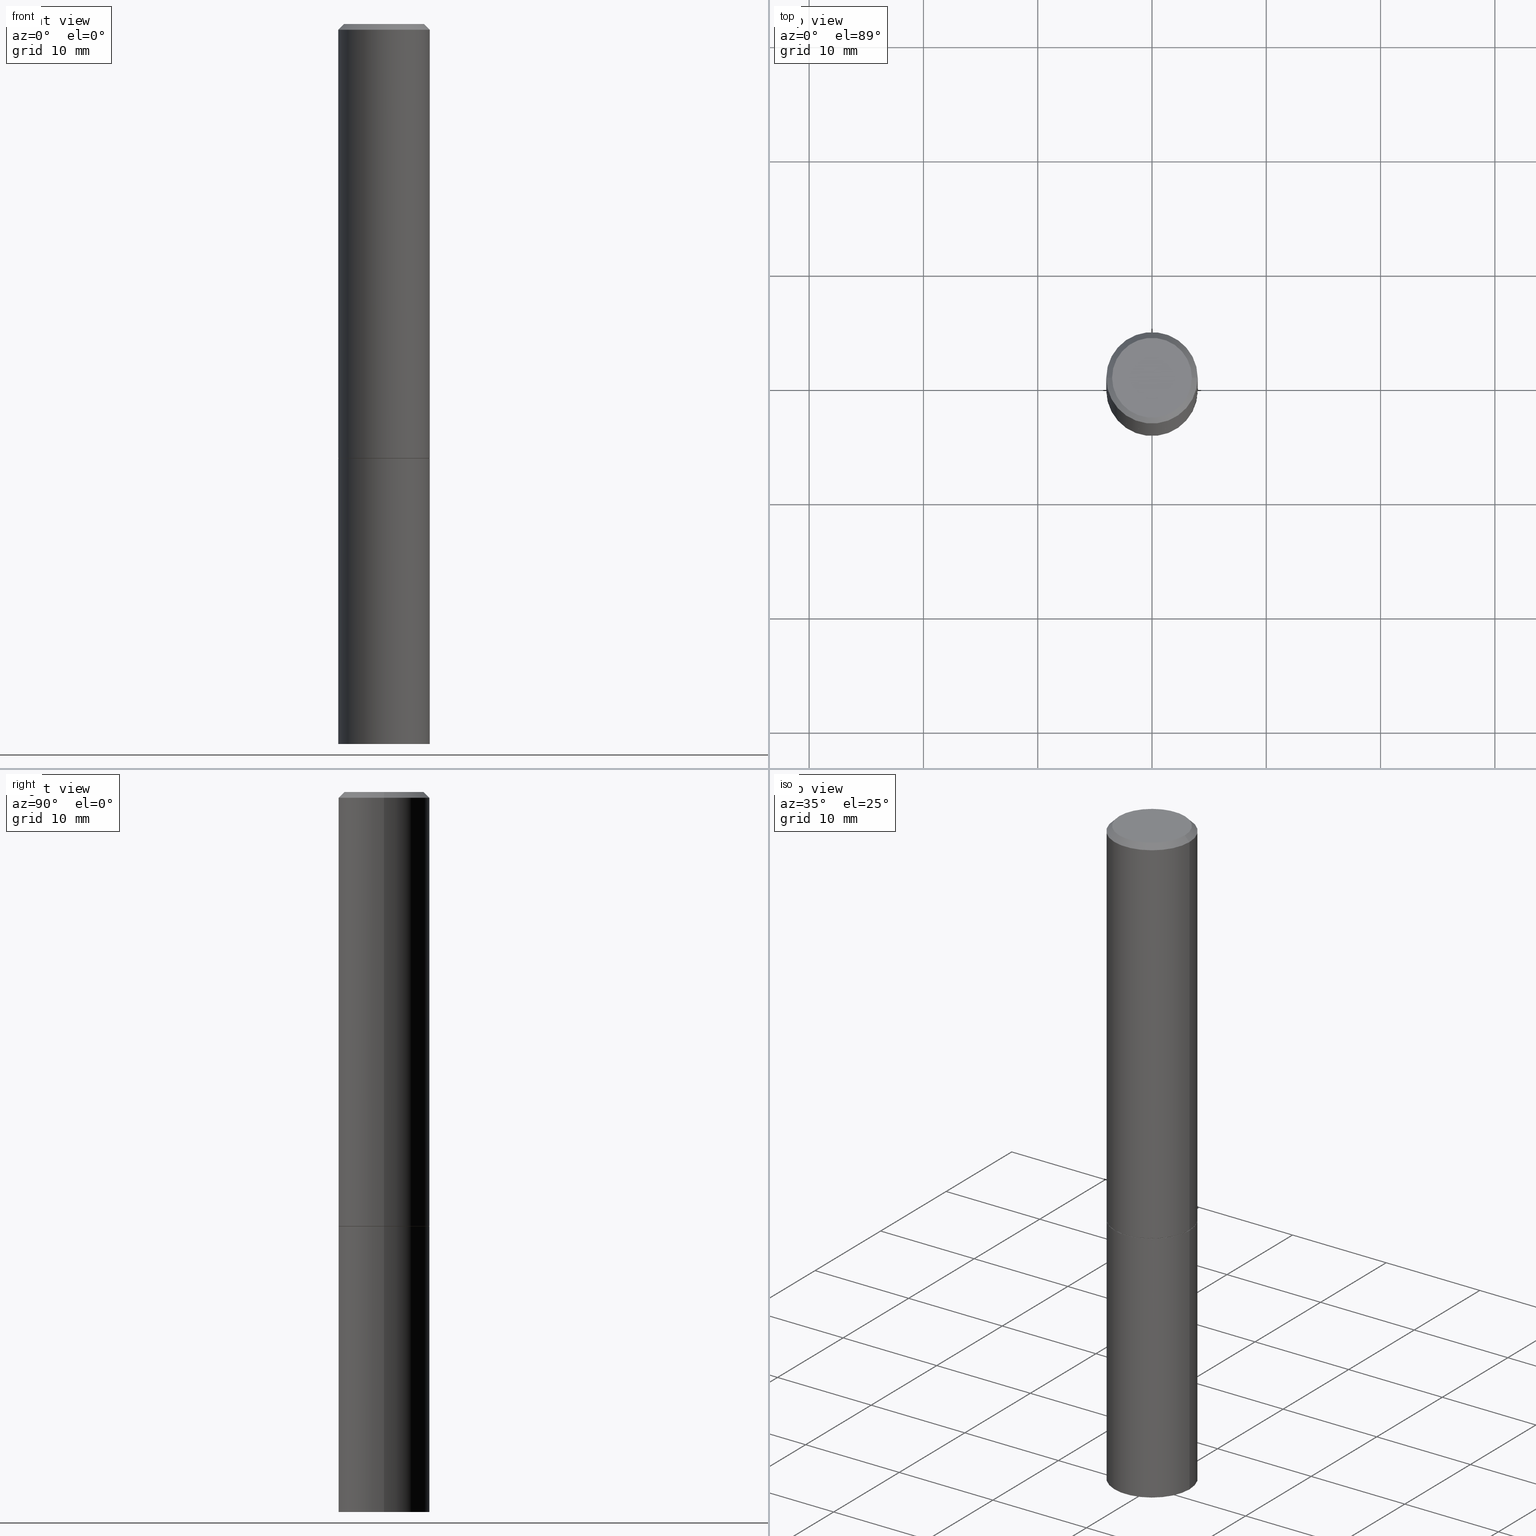
[diagram: canonical four-view strip — front | top / right | iso, engineering-drawing reading convention]
A machine part, canonical four-view strip (front | top / right | iso — engineering-drawing reading convention). The complete STEP part file that produces these views, byte-faithful:
ISO-10303-21;
HEADER;
FILE_DESCRIPTION (( 'STEP AP203' ),
    '1' );
FILE_NAME ('83222.STEP',
    '2024-03-01T01:12:23',
    ( '' ),
    ( '' ),
    'SwSTEP 2.0',
    'SolidWorks 2023',
    '' );
FILE_SCHEMA (( 'CONFIG_CONTROL_DESIGN' ));
ENDSEC;

DATA;
#1 = MANIFOLD_SOLID_BREP ( 'Body-Move/Copy2[1]', #156 ) ;
#2 = PRODUCT_RELATED_PRODUCT_CATEGORY ( 'detail', '', ( #17 ) ) ;
#3 = DIRECTION ( 'NONE',  ( 2.445468806185136597E-29, -3.491481338843145583E-15, -1.000000000000000000 ) ) ;
#4 = COORDINATED_UNIVERSAL_TIME_OFFSET ( 5, 0, .BEHIND. ) ;
#5 = DIRECTION ( 'NONE',  ( 1.000000000000000000, -6.982962677686267499E-15, 0.000000000000000000 ) ) ;
#6 = PERSON_AND_ORGANIZATION ( #346, #191 ) ;
#7 = PLANE ( 'NONE',  #265 ) ;
#8 = AXIS2_PLACEMENT_3D ( 'NONE', #71, #187, #299 ) ;
#9 = COORDINATED_UNIVERSAL_TIME_OFFSET ( 5, 0, .BEHIND. ) ;
#10 = DIRECTION ( 'NONE',  ( -1.000000000000000000, 6.982962677686265922E-15, -4.876176775795935793E-29 ) ) ;
#11 = CARTESIAN_POINT ( 'NONE',  ( 3.655975865246779683E-29, -5.219764601570503930E-15, -1.495000000000000329 ) ) ;
#12 = DIRECTION ( 'NONE',  ( -2.445468806185136597E-29, 3.491481338843145583E-15, 1.000000000000000000 ) ) ;
#13 = AXIS2_PLACEMENT_3D ( 'NONE', #268, #129, #272 ) ;
#14 = CIRCLE ( 'NONE', #275, 0.1374999999999998446 ) ;
#15 = DIRECTION ( 'NONE',  ( 2.438088387897960049E-29, -3.491481338843145188E-15, -1.000000000000000000 ) ) ;
#16 = CARTESIAN_POINT ( 'NONE',  ( 3.658421334052965846E-29, -5.223256082909347726E-15, -1.496000000000000663 ) ) ;
#17 = PRODUCT ( '83222', '83222', '', ( #255 ) ) ;
#18 = CYLINDRICAL_SURFACE ( 'NONE', #297, 0.1575000000000000011 ) ;
#19 = ADVANCED_FACE ( 'NONE', ( #342 ), #229, .T. ) ;
#20 = ORIENTED_EDGE ( 'NONE', *, *, #232, .T. ) ;
#21 =( NAMED_UNIT ( * ) SI_UNIT ( $, .STERADIAN. ) SOLID_ANGLE_UNIT ( ) );
#22 = ORIENTED_EDGE ( 'NONE', *, *, #103, .T. ) ;
#23 =( LENGTH_UNIT ( ) NAMED_UNIT ( * ) SI_UNIT ( $, .METRE. ) );
#24 = EDGE_CURVE ( 'NONE', #338, #307, #137, .T. ) ;
#25 = VERTEX_POINT ( 'NONE', #62 ) ;
#26 = ORIENTED_EDGE ( 'NONE', *, *, #167, .T. ) ;
#27 = PERSON_AND_ORGANIZATION_ROLE ( 'creator' ) ;
#28 = ORIENTED_EDGE ( 'NONE', *, *, #103, .F. ) ;
#29 = APPROVAL ( #234, 'UNSPECIFIED' ) ;
#30 = DATE_AND_TIME ( #227, #77 ) ;
#31 = CONICAL_SURFACE ( 'NONE', #240, 0.1565000000000000002, 0.7853981633972775267 ) ;
#32 = DIRECTION ( 'NONE',  ( -2.445468806185136877E-29, 3.491481338843145188E-15, 1.000000000000000000 ) ) ;
#33 = DIRECTION ( 'NONE',  ( -1.000000000000000000, 6.982962677686265922E-15, 0.000000000000000000 ) ) ;
#34 = EDGE_CURVE ( 'NONE', #278, #250, #67, .T. ) ;
#35 = LINE ( 'NONE', #86, #214 ) ;
#36 = PERSON_AND_ORGANIZATION ( #346, #191 ) ;
#37 = CARTESIAN_POINT ( 'NONE',  ( -0.1575000000000000011, -1.525692305351524236E-15, -1.495000000000000329 ) ) ;
#38 = AXIS2_PLACEMENT_3D ( 'NONE', #199, #12, #42 ) ;
#39 = DIRECTION ( 'NONE',  ( -2.445468806185136597E-29, 3.491481338843145583E-15, 1.000000000000000000 ) ) ;
#40 = DIRECTION ( 'NONE',  ( -2.445468806185136597E-29, 3.491481338843145583E-15, 1.000000000000000000 ) ) ;
#41 = ADVANCED_FACE ( 'NONE', ( #344 ), #254, .T. ) ;
#42 = DIRECTION ( 'NONE',  ( 1.000000000000000000, -6.982962677686267499E-15, 0.000000000000000000 ) ) ;
#43 = AXIS2_PLACEMENT_3D ( 'NONE', #262, #65, #181 ) ;
#44 = DIRECTION ( 'NONE',  ( -2.445468806185136597E-29, 3.491481338843145583E-15, 1.000000000000000000 ) ) ;
#45 = PLANE ( 'NONE',  #339 ) ;
#46 = ADVANCED_FACE ( 'NONE', ( #288 ), #113, .T. ) ;
#47 = DIRECTION ( 'NONE',  ( 1.000000000000000000, -6.982962677686268288E-15, 0.000000000000000000 ) ) ;
#48 = AXIS2_PLACEMENT_3D ( 'NONE', #274, #15, #354 ) ;
#49 = APPROVAL_DATE_TIME ( #101, #359 ) ;
#50 = ORIENTED_EDGE ( 'NONE', *, *, #133, .F. ) ;
#51 =( CONVERSION_BASED_UNIT ( 'INCH', #79 ) LENGTH_UNIT ( ) NAMED_UNIT ( #251 ) );
#52 = ORIENTED_EDGE ( 'NONE', *, *, #318, .F. ) ;
#53 = ADVANCED_FACE ( 'NONE', ( #283 ), #31, .T. ) ;
#54 = DIRECTION ( 'NONE',  ( 0.000000000000000000, 0.000000000000000000, 1.000000000000000000 ) ) ;
#55 = ORIENTED_EDGE ( 'NONE', *, *, #152, .T. ) ;
#56 = AXIS2_PLACEMENT_3D ( 'NONE', #116, #320, #267 ) ;
#57 = EDGE_LOOP ( 'NONE', ( #166, #218, #136, #333 ) ) ;
#58 = ORIENTED_EDGE ( 'NONE', *, *, #97, .F. ) ;
#59 = PRODUCT_DEFINITION ( 'UNKNOWN', '', #177, #322 ) ;
#60 = DIRECTION ( 'NONE',  ( -2.445468806185136877E-29, 3.491481338843145188E-15, 1.000000000000000000 ) ) ;
#61 = AXIS2_PLACEMENT_3D ( 'NONE', #314, #145, #324 ) ;
#62 = CARTESIAN_POINT ( 'NONE',  ( -0.1574999999999998346, 1.029986994958722604E-15, -0.02000000000000003511 ) ) ;
#63 = CYLINDRICAL_SURFACE ( 'NONE', #56, 0.1574999999999998901 ) ;
#64 = SECURITY_CLASSIFICATION_LEVEL ( 'unclassified' ) ;
#65 = DIRECTION ( 'NONE',  ( -2.445468806185136597E-29, 3.491481338843145583E-15, 1.000000000000000000 ) ) ;
#66 = DIRECTION ( 'NONE',  ( 2.438088387897960049E-29, -3.491481338843145188E-15, -1.000000000000000000 ) ) ;
#67 = CIRCLE ( 'NONE', #43, 0.1565000000000000002 ) ;
#68 = FACE_OUTER_BOUND ( 'NONE', #225, .T. ) ;
#69 = EDGE_CURVE ( 'NONE', #141, #220, #76, .T. ) ;
#70 = DIRECTION ( 'NONE',  ( -2.438088387897960049E-29, 3.491481338843145188E-15, 1.000000000000000000 ) ) ;
#71 = CARTESIAN_POINT ( 'NONE',  ( 3.658421334052965286E-29, -5.223256082909346937E-15, -1.496000000000000441 ) ) ;
#72 = VECTOR ( 'NONE', #351, 39.37007874015748143 ) ;
#73 = CARTESIAN_POINT ( 'NONE',  ( 1.099816621735623373E-15, 0.1574999999999947553, -1.496000000000000885 ) ) ;
#74 = DIRECTION ( 'NONE',  ( -2.445468806185136877E-29, 3.491481338843145188E-15, 1.000000000000000000 ) ) ;
#75 = ORIENTED_EDGE ( 'NONE', *, *, #167, .F. ) ;
#76 = CIRCLE ( 'NONE', #252, 0.1575000000000000011 ) ;
#77 = LOCAL_TIME ( 20, 12, 23.00000000000000000, #9 ) ;
#78 = PRODUCT_DEFINITION_SHAPE ( 'NONE', 'NONE',  #59 ) ;
#79 = LENGTH_MEASURE_WITH_UNIT ( LENGTH_MEASURE( 0.02539999999999999897 ), #23 );
#80 = VERTEX_POINT ( 'NONE', #290 ) ;
#81 = VERTEX_POINT ( 'NONE', #117 ) ;
#82 = ORIENTED_EDGE ( 'NONE', *, *, #293, .F. ) ;
#83 = APPROVAL_STATUS ( 'not_yet_approved' ) ;
#84 = ORIENTED_EDGE ( 'NONE', *, *, #211, .T. ) ;
#85 = PERSON_AND_ORGANIZATION ( #346, #191 ) ;
#86 = CARTESIAN_POINT ( 'NONE',  ( 0.1575000000000000011, -1.099816621735586889E-15, 7.679978421878598033E-30 ) ) ;
#87 = PERSON_AND_ORGANIZATION ( #346, #191 ) ;
#88 = DIRECTION ( 'NONE',  ( -2.445468806185136597E-29, 3.491481338843145583E-15, 1.000000000000000000 ) ) ;
#89 = CIRCLE ( 'NONE', #233, 0.1575000000000000011 ) ;
#90 = ORIENTED_EDGE ( 'NONE', *, *, #24, .T. ) ;
#91 = ORIENTED_EDGE ( 'NONE', *, *, #232, .F. ) ;
#92 = FACE_OUTER_BOUND ( 'NONE', #303, .T. ) ;
#93 = CC_DESIGN_DATE_AND_TIME_ASSIGNMENT ( #30, #263, ( #260 ) ) ;
#94 = CARTESIAN_POINT ( 'NONE',  ( 0.1574999999999998346, -1.150358061425878091E-15, -0.02000000000000003511 ) ) ;
#95 = DIRECTION ( 'NONE',  ( 1.000000000000000000, -6.982962677686265922E-15, 0.000000000000000000 ) ) ;
#96 = DIRECTION ( 'NONE',  ( 0.7071067811864267805, -2.468850131080992517E-15, 0.7071067811866682540 ) ) ;
#97 = EDGE_CURVE ( 'NONE', #81, #362, #35, .T. ) ;
#98 = CARTESIAN_POINT ( 'NONE',  ( 0.1575000000000000011, -6.319581223306091410E-15, -1.495000000000000329 ) ) ;
#99 = AXIS2_PLACEMENT_3D ( 'NONE', #185, #44, #47 ) ;
#100 = CARTESIAN_POINT ( 'NONE',  ( 4.890937612370281041E-31, -6.982962677686302702E-17, -0.02000000000000003511 ) ) ;
#101 = DATE_AND_TIME ( #249, #241 ) ;
#102 = ORIENTED_EDGE ( 'NONE', *, *, #287, .T. ) ;
#103 = EDGE_CURVE ( 'NONE', #220, #305, #204, .T. ) ;
#104 = ORIENTED_EDGE ( 'NONE', *, *, #162, .F. ) ;
#105 = CONICAL_SURFACE ( 'NONE', #38, 0.1565000000000000002, 0.7853981633972775267 ) ;
#106 = APPROVAL_PERSON_ORGANIZATION ( #6, #361, #172 ) ;
#107 = PERSON_AND_ORGANIZATION ( #346, #191 ) ;
#108 = ORIENTED_EDGE ( 'NONE', *, *, #34, .T. ) ;
#109 = EDGE_LOOP ( 'NONE', ( #75, #192 ) ) ;
#110 = ADVANCED_FACE ( 'NONE', ( #92 ), #63, .T. ) ;
#111 = PERSON_AND_ORGANIZATION_ROLE ( 'design_owner' ) ;
#112 = ORIENTED_EDGE ( 'NONE', *, *, #133, .T. ) ;
#113 = CONICAL_SURFACE ( 'NONE', #247, 0.1574999999999998346, 0.7853981633974471688 ) ;
#114 = CALENDAR_DATE ( 2024, 29, 2 ) ;
#115 = CARTESIAN_POINT ( 'NONE',  ( 3.658421334052965846E-29, -5.223256082909347726E-15, -1.496000000000000663 ) ) ;
#116 = CARTESIAN_POINT ( 'NONE',  ( 0.000000000000000000, 0.000000000000000000, 0.000000000000000000 ) ) ;
#117 = CARTESIAN_POINT ( 'NONE',  ( 0.1575000000000000011, -9.759737786468242027E-15, -2.480300000000000171 ) ) ;
#118 = APPROVAL_STATUS ( 'not_yet_approved' ) ;
#119 = LINE ( 'NONE', #235, #325 ) ;
#120 = PERSON_AND_ORGANIZATION ( #346, #191 ) ;
#121 = DIRECTION ( 'NONE',  ( -2.445468806185136597E-29, 3.491481338843145583E-15, 1.000000000000000000 ) ) ;
#122 = CC_DESIGN_PERSON_AND_ORGANIZATION_ASSIGNMENT ( #107, #111, ( #17 ) ) ;
#123 = LINE ( 'NONE', #245, #226 ) ;
#124 = LINE ( 'NONE', #243, #161 ) ;
#125 = AXIS2_PLACEMENT_3D ( 'NONE', #366, #175, #33 ) ;
#126 = DIRECTION ( 'NONE',  ( -2.445468806185136597E-29, 3.491481338843145583E-15, 1.000000000000000000 ) ) ;
#127 = CC_DESIGN_PERSON_AND_ORGANIZATION_ASSIGNMENT ( #163, #236, ( #59 ) ) ;
#128 = DIRECTION ( 'NONE',  ( -0.7071067811865466846, 2.468850131082247989E-15, -0.7071067811865483499 ) ) ;
#129 = DIRECTION ( 'NONE',  ( -2.445468806185136597E-29, 3.491481338843145583E-15, 1.000000000000000000 ) ) ;
#130 = AXIS2_PLACEMENT_3D ( 'NONE', #300, #40, #154 ) ;
#131 = LOCAL_TIME ( 20, 12, 23.00000000000000000, #266 ) ;
#132 = PERSON_AND_ORGANIZATION ( #346, #191 ) ;
#133 = EDGE_CURVE ( 'NONE', #81, #80, #291, .T. ) ;
#134 = DIRECTION ( 'NONE',  ( 1.000000000000000000, -6.982962677686265922E-15, 4.876173381029105647E-29 ) ) ;
#135 = ORIENTED_EDGE ( 'NONE', *, *, #287, .F. ) ;
#136 = ORIENTED_EDGE ( 'NONE', *, *, #200, .T. ) ;
#137 = CIRCLE ( 'NONE', #309, 0.1374999999999998446 ) ;
#138 = APPROVAL_PERSON_ORGANIZATION ( #120, #29, #347 ) ;
#139 = DIRECTION ( 'NONE',  ( 1.000000000000000000, 0.000000000000000000, 0.000000000000000000 ) ) ;
#140 = ORIENTED_EDGE ( 'NONE', *, *, #293, .T. ) ;
#141 = VERTEX_POINT ( 'NONE', #37 ) ;
#142 = COORDINATED_UNIVERSAL_TIME_OFFSET ( 5, 0, .BEHIND. ) ;
#143 = CC_DESIGN_APPROVAL ( #29, ( #260 ) ) ;
#144 = DATE_AND_TIME ( #114, #298 ) ;
#145 = DIRECTION ( 'NONE',  ( -2.445468806185136597E-29, 3.491481338843145583E-15, 1.000000000000000000 ) ) ;
#146 = ADVANCED_FACE ( 'NONE', ( #151 ), #7, .T. ) ;
#147 = CARTESIAN_POINT ( 'NONE',  ( 4.890937612370281041E-31, -6.982962677686302702E-17, -0.02000000000000003511 ) ) ;
#148 = CARTESIAN_POINT ( 'NONE',  ( 1.099816621735647434E-15, 0.1574999999999913136, -2.480300000000001059 ) ) ;
#149 = PERSON_AND_ORGANIZATION_ROLE ( 'design_supplier' ) ;
#150 = CIRCLE ( 'NONE', #8, 0.1575000000000000011 ) ;
#151 = FACE_OUTER_BOUND ( 'NONE', #253, .T. ) ;
#152 = EDGE_CURVE ( 'NONE', #80, #81, #89, .T. ) ;
#153 = DIRECTION ( 'NONE',  ( 1.000000000000000000, -6.982962677686267499E-15, 0.000000000000000000 ) ) ;
#154 = DIRECTION ( 'NONE',  ( 1.000000000000000000, -6.982962677686265922E-15, 0.000000000000000000 ) ) ;
#155 = CARTESIAN_POINT ( 'NONE',  ( -0.1565000000000000002, -4.111256701444791131E-15, -1.496000000000000663 ) ) ;
#156 = CLOSED_SHELL ( 'NONE', ( #228, #146, #269, #19 ) ) ;
#157 =( GEOMETRIC_REPRESENTATION_CONTEXT ( 3 ) GLOBAL_UNCERTAINTY_ASSIGNED_CONTEXT ( ( #296 ) ) GLOBAL_UNIT_ASSIGNED_CONTEXT ( ( #51, #165, #21 ) ) REPRESENTATION_CONTEXT ( 'NONE', 'WORKASPACE' ) );
#158 = CARTESIAN_POINT ( 'NONE',  ( 0.1374999999999998446, -1.046838268059731308E-15, 8.537024980207840646E-18 ) ) ;
#159 = DIRECTION ( 'NONE',  ( 1.000000000000000000, -6.982962677686265922E-15, 4.876176775795935793E-29 ) ) ;
#160 = ADVANCED_BREP_SHAPE_REPRESENTATION ( '83222', ( #1, #237, #352 ), #157 ) ;
#161 = VECTOR ( 'NONE', #128, 39.37007874015748143 ) ;
#162 = EDGE_CURVE ( 'NONE', #141, #25, #119, .T. ) ;
#163 = PERSON_AND_ORGANIZATION ( #346, #191 ) ;
#164 = EDGE_LOOP ( 'NONE', ( #26, #84, #52, #222 ) ) ;
#165 =( NAMED_UNIT ( * ) PLANE_ANGLE_UNIT ( ) SI_UNIT ( $, .RADIAN. ) );
#166 = ORIENTED_EDGE ( 'NONE', *, *, #323, .F. ) ;
#167 = EDGE_CURVE ( 'NONE', #250, #278, #182, .T. ) ;
#168 = ORIENTED_EDGE ( 'NONE', *, *, #152, .F. ) ;
#169 = AXIS2_PLACEMENT_3D ( 'NONE', #292, #201, #205 ) ;
#170 = CC_DESIGN_APPROVAL ( #361, ( #177 ) ) ;
#171 = ORIENTED_EDGE ( 'NONE', *, *, #216, .T. ) ;
#172 = APPROVAL_ROLE ( '' ) ;
#173 = ORIENTED_EDGE ( 'NONE', *, *, #69, .T. ) ;
#174 = DATE_AND_TIME ( #319, #317 ) ;
#175 = DIRECTION ( 'NONE',  ( 2.445468806185136597E-29, -3.491481338843145583E-15, -1.000000000000000000 ) ) ;
#176 = AXIS2_PLACEMENT_3D ( 'NONE', #73, #295, #217 ) ;
#177 = PRODUCT_DEFINITION_FORMATION_WITH_SPECIFIED_SOURCE ( 'ANY', '', #17, .NOT_KNOWN. ) ;
#178 = CARTESIAN_POINT ( 'NONE',  ( 6.065496279980994755E-29, -8.659921164732655335E-15, -2.480300000000000171 ) ) ;
#179 = DIRECTION ( 'NONE',  ( -1.000000000000000000, 6.982962677686265922E-15, 0.000000000000000000 ) ) ;
#180 = ADVANCED_FACE ( 'NONE', ( #261 ), #105, .T. ) ;
#181 = DIRECTION ( 'NONE',  ( 1.000000000000000000, -6.982962677686267499E-15, 0.000000000000000000 ) ) ;
#182 = CIRCLE ( 'NONE', #334, 0.1565000000000000002 ) ;
#183 = DIRECTION ( 'NONE',  ( -2.445468806185136877E-29, 3.491481338843145188E-15, 1.000000000000000000 ) ) ;
#184 = CARTESIAN_POINT ( 'NONE',  ( 0.1565000000000000002, -6.316089741967248403E-15, -1.496000000000000663 ) ) ;
#185 = CARTESIAN_POINT ( 'NONE',  ( 3.658421334052965286E-29, -5.223256082909346937E-15, -1.496000000000000441 ) ) ;
#186 = CC_DESIGN_PERSON_AND_ORGANIZATION_ASSIGNMENT ( #87, #206, ( #260 ) ) ;
#187 = DIRECTION ( 'NONE',  ( -2.445468806185136597E-29, 3.491481338843145583E-15, 1.000000000000000000 ) ) ;
#188 = CARTESIAN_POINT ( 'NONE',  ( 0.000000000000000000, 0.000000000000000000, 0.000000000000000000 ) ) ;
#189 = DIRECTION ( 'NONE',  ( 1.000000000000000000, -6.982962677686268288E-15, 0.000000000000000000 ) ) ;
#190 = EDGE_LOOP ( 'NONE', ( #135, #55, #279, #257 ) ) ;
#191 = ORGANIZATION ( 'UNSPECIFIED', 'UNSPECIFIED', '' ) ;
#192 = ORIENTED_EDGE ( 'NONE', *, *, #34, .F. ) ;
#193 = CARTESIAN_POINT ( 'NONE',  ( 0.000000000000000000, 0.000000000000000000, 0.000000000000000000 ) ) ;
#194 = ORIENTED_EDGE ( 'NONE', *, *, #355, .F. ) ;
#195 = CARTESIAN_POINT ( 'NONE',  ( -2.087702828670439639E-46, 2.980686340760894400E-32, 8.537024980200822558E-18 ) ) ;
#196 = ORIENTED_EDGE ( 'NONE', *, *, #200, .F. ) ;
#197 = AXIS2_PLACEMENT_3D ( 'NONE', #11, #239, #189 ) ;
#198 = APPROVAL_ROLE ( '' ) ;
#199 = CARTESIAN_POINT ( 'NONE',  ( 3.658421334052965846E-29, -5.223256082909347726E-15, -1.496000000000000663 ) ) ;
#200 = EDGE_CURVE ( 'NONE', #338, #25, #124, .T. ) ;
#201 = DIRECTION ( 'NONE',  ( -2.445468806185136597E-29, 3.491481338843145583E-15, 1.000000000000000000 ) ) ;
#202 = AXIS2_PLACEMENT_3D ( 'NONE', #100, #126, #95 ) ;
#203 = APPROVAL_DATE_TIME ( #365, #361 ) ;
#204 = LINE ( 'NONE', #231, #302 ) ;
#205 = DIRECTION ( 'NONE',  ( 1.000000000000000000, -6.982962677686265922E-15, 4.876176775795935232E-29 ) ) ;
#206 = PERSON_AND_ORGANIZATION_ROLE ( 'classification_officer' ) ;
#207 = DIRECTION ( 'NONE',  ( -2.445468806185136597E-29, 3.491481338843145583E-15, 1.000000000000000000 ) ) ;
#208 = CIRCLE ( 'NONE', #202, 0.1574999999999998346 ) ;
#209 = FACE_OUTER_BOUND ( 'NONE', #282, .T. ) ;
#210 = PLANE ( 'NONE',  #48 ) ;
#211 = EDGE_CURVE ( 'NONE', #278, #141, #358, .T. ) ;
#212 = DIRECTION ( 'NONE',  ( -2.445468806185136597E-29, 3.491481338843145583E-15, 1.000000000000000000 ) ) ;
#213 = APPLICATION_CONTEXT ( 'configuration controlled 3d designs of mechanical parts and assemblies' ) ;
#214 = VECTOR ( 'NONE', #32, 39.37007874015748143 ) ;
#215 = CYLINDRICAL_SURFACE ( 'NONE', #13, 0.1574999999999998901 ) ;
#216 = EDGE_CURVE ( 'NONE', #250, #220, #123, .T. ) ;
#217 = DIRECTION ( 'NONE',  ( -1.000000000000000000, 6.982962677686265922E-15, -4.876176775795935793E-29 ) ) ;
#218 = ORIENTED_EDGE ( 'NONE', *, *, #24, .F. ) ;
#219 = CARTESIAN_POINT ( 'NONE',  ( 0.1575000000000000011, -6.323072704644934417E-15, -1.496000000000000441 ) ) ;
#220 = VERTEX_POINT ( 'NONE', #98 ) ;
#221 = VECTOR ( 'NONE', #74, 39.37007874015748143 ) ;
#222 = ORIENTED_EDGE ( 'NONE', *, *, #216, .F. ) ;
#223 = ORIENTED_EDGE ( 'NONE', *, *, #69, .F. ) ;
#224 = APPLICATION_PROTOCOL_DEFINITION ( 'international standard', 'config_control_design', 1994, #213 ) ;
#225 = EDGE_LOOP ( 'NONE', ( #336, #310, #91, #28 ) ) ;
#226 = VECTOR ( 'NONE', #96, 39.37007874015748143 ) ;
#227 = CALENDAR_DATE ( 2024, 29, 2 ) ;
#228 = ADVANCED_FACE ( 'NONE', ( #301 ), #18, .T. ) ;
#229 = CYLINDRICAL_SURFACE ( 'NONE', #169, 0.1575000000000000011 ) ;
#230 = CARTESIAN_POINT ( 'NONE',  ( -2.087702828670439639E-46, 2.980686340760894400E-32, 8.537024980200822558E-18 ) ) ;
#231 = CARTESIAN_POINT ( 'NONE',  ( 0.1574999999999998901, -1.099816621735586297E-15, 7.679978421878593829E-30 ) ) ;
#232 = EDGE_CURVE ( 'NONE', #305, #25, #208, .T. ) ;
#233 = AXIS2_PLACEMENT_3D ( 'NONE', #178, #121, #264 ) ;
#234 = APPROVAL_STATUS ( 'not_yet_approved' ) ;
#235 = CARTESIAN_POINT ( 'NONE',  ( -0.1574999999999998901, 1.119104808822157012E-15, -7.747322767151471379E-30 ) ) ;
#236 = PERSON_AND_ORGANIZATION_ROLE ( 'creator' ) ;
#237 = MANIFOLD_SOLID_BREP ( 'Body-Move/Copy2[2]', #345 ) ;
#238 = DIRECTION ( 'NONE',  ( -2.445468806185136597E-29, 3.491481338843145583E-15, 1.000000000000000000 ) ) ;
#239 = DIRECTION ( 'NONE',  ( -2.445468806185136597E-29, 3.491481338843145583E-15, 1.000000000000000000 ) ) ;
#240 = AXIS2_PLACEMENT_3D ( 'NONE', #115, #238, #5 ) ;
#241 = LOCAL_TIME ( 20, 12, 23.00000000000000000, #312 ) ;
#242 = ADVANCED_FACE ( 'NONE', ( #68 ), #215, .T. ) ;
#243 = CARTESIAN_POINT ( 'NONE',  ( -0.1574999999999998346, 1.029986994958722604E-15, -0.02000000000000003511 ) ) ;
#244 = CARTESIAN_POINT ( 'NONE',  ( -0.1575000000000000011, -5.822483814998842744E-15, -1.496000000000000441 ) ) ;
#245 = CARTESIAN_POINT ( 'NONE',  ( 0.1565000000000000002, -6.316089741967248403E-15, -1.496000000000000663 ) ) ;
#246 = ADVANCED_FACE ( 'NONE', ( #330 ), #210, .F. ) ;
#247 = AXIS2_PLACEMENT_3D ( 'NONE', #147, #3, #179 ) ;
#248 = CARTESIAN_POINT ( 'NONE',  ( -0.1374999999999998446, 9.950721815702915469E-16, 8.537024980193986277E-18 ) ) ;
#249 = CALENDAR_DATE ( 2024, 29, 2 ) ;
#250 = VERTEX_POINT ( 'NONE', #184 ) ;
#251 = DIMENSIONAL_EXPONENTS ( 1.000000000000000000, 0.000000000000000000, 0.000000000000000000, 0.000000000000000000, 0.000000000000000000, 0.000000000000000000, 0.000000000000000000 ) ;
#252 = AXIS2_PLACEMENT_3D ( 'NONE', #341, #207, #350 ) ;
#253 = EDGE_LOOP ( 'NONE', ( #50, #168 ) ) ;
#254 = CONICAL_SURFACE ( 'NONE', #125, 0.1574999999999998346, 0.7853981633974471688 ) ;
#255 = MECHANICAL_CONTEXT ( 'NONE', #213, 'mechanical' ) ;
#256 = EDGE_LOOP ( 'NONE', ( #194, #335, #20, #196 ) ) ;
#257 = ORIENTED_EDGE ( 'NONE', *, *, #280, .F. ) ;
#258 = APPROVAL_DATE_TIME ( #174, #29 ) ;
#259 = EDGE_LOOP ( 'NONE', ( #112, #102, #82, #58 ) ) ;
#260 = SECURITY_CLASSIFICATION ( '', '', #64 ) ;
#261 = FACE_OUTER_BOUND ( 'NONE', #276, .T. ) ;
#262 = CARTESIAN_POINT ( 'NONE',  ( 3.658421334052965846E-29, -5.223256082909347726E-15, -1.496000000000000663 ) ) ;
#263 = DATE_TIME_ROLE ( 'classification_date' ) ;
#264 = DIRECTION ( 'NONE',  ( 1.000000000000000000, -6.982962677686261977E-15, 0.000000000000000000 ) ) ;
#265 = AXIS2_PLACEMENT_3D ( 'NONE', #148, #66, #10 ) ;
#266 = COORDINATED_UNIVERSAL_TIME_OFFSET ( 5, 0, .BEHIND. ) ;
#267 = DIRECTION ( 'NONE',  ( 1.000000000000000000, -6.982962677686266711E-15, 4.876176775795935793E-29 ) ) ;
#268 = CARTESIAN_POINT ( 'NONE',  ( 0.000000000000000000, 0.000000000000000000, 0.000000000000000000 ) ) ;
#269 = ADVANCED_FACE ( 'NONE', ( #209 ), #356, .F. ) ;
#270 = FACE_OUTER_BOUND ( 'NONE', #109, .T. ) ;
#271 = VECTOR ( 'NONE', #326, 39.37007874015748143 ) ;
#272 = DIRECTION ( 'NONE',  ( 1.000000000000000000, -6.982962677686266711E-15, 4.876176775795935793E-29 ) ) ;
#273 = LINE ( 'NONE', #94, #271 ) ;
#274 = CARTESIAN_POINT ( 'NONE',  ( 9.601573681818602922E-16, 0.1374999999999998446, -4.758101716008314943E-16 ) ) ;
#275 = AXIS2_PLACEMENT_3D ( 'NONE', #195, #306, #134 ) ;
#276 = EDGE_LOOP ( 'NONE', ( #313, #108, #171, #223 ) ) ;
#277 = VERTEX_POINT ( 'NONE', #244 ) ;
#278 = VERTEX_POINT ( 'NONE', #327 ) ;
#279 = ORIENTED_EDGE ( 'NONE', *, *, #97, .T. ) ;
#280 = EDGE_CURVE ( 'NONE', #277, #362, #329, .T. ) ;
#281 = SHAPE_DEFINITION_REPRESENTATION ( #78, #160 ) ;
#282 = EDGE_LOOP ( 'NONE', ( #140, #348 ) ) ;
#283 = FACE_OUTER_BOUND ( 'NONE', #164, .T. ) ;
#284 = CC_DESIGN_SECURITY_CLASSIFICATION ( #260, ( #177 ) ) ;
#285 = DATE_TIME_ROLE ( 'creation_date' ) ;
#286 = CARTESIAN_POINT ( 'NONE',  ( 3.658421334052965846E-29, -5.223256082909347726E-15, -1.496000000000000663 ) ) ;
#287 = EDGE_CURVE ( 'NONE', #80, #277, #331, .T. ) ;
#288 = FACE_OUTER_BOUND ( 'NONE', #256, .T. ) ;
#289 = CALENDAR_DATE ( 2024, 29, 2 ) ;
#290 = CARTESIAN_POINT ( 'NONE',  ( -0.1575000000000000011, -5.822483814998842744E-15, -2.480300000000000171 ) ) ;
#291 = CIRCLE ( 'NONE', #61, 0.1575000000000000011 ) ;
#292 = CARTESIAN_POINT ( 'NONE',  ( 0.000000000000000000, 0.000000000000000000, 0.000000000000000000 ) ) ;
#293 = EDGE_CURVE ( 'NONE', #362, #277, #150, .T. ) ;
#294 = CARTESIAN_POINT ( 'NONE',  ( 0.1574999999999998346, -1.150358061425878091E-15, -0.02000000000000003511 ) ) ;
#295 = DIRECTION ( 'NONE',  ( 2.438088387897960049E-29, -3.491481338843145188E-15, -1.000000000000000000 ) ) ;
#296 = UNCERTAINTY_MEASURE_WITH_UNIT (LENGTH_MEASURE( 1.000000000000000082E-05 ), #51, 'distance_accuracy_value', 'NONE');
#297 = AXIS2_PLACEMENT_3D ( 'NONE', #188, #212, #353 ) ;
#298 = LOCAL_TIME ( 20, 12, 23.00000000000000000, #4 ) ;
#299 = DIRECTION ( 'NONE',  ( 1.000000000000000000, -6.982962677686268288E-15, 0.000000000000000000 ) ) ;
#300 = CARTESIAN_POINT ( 'NONE',  ( 4.890937612370281041E-31, -6.982962677686302702E-17, -0.02000000000000003511 ) ) ;
#301 = FACE_OUTER_BOUND ( 'NONE', #259, .T. ) ;
#302 = VECTOR ( 'NONE', #183, 39.37007874015748143 ) ;
#303 = EDGE_LOOP ( 'NONE', ( #104, #173, #22, #364 ) ) ;
#304 = CC_DESIGN_DATE_AND_TIME_ASSIGNMENT ( #144, #285, ( #59 ) ) ;
#305 = VERTEX_POINT ( 'NONE', #294 ) ;
#306 = DIRECTION ( 'NONE',  ( -2.445468806185136597E-29, 3.491481338843145583E-15, 1.000000000000000000 ) ) ;
#307 = VERTEX_POINT ( 'NONE', #158 ) ;
#308 = APPLICATION_CONTEXT ( 'configuration controlled 3d designs of mechanical parts and assemblies' ) ;
#309 = AXIS2_PLACEMENT_3D ( 'NONE', #230, #88, #321 ) ;
#310 = ORIENTED_EDGE ( 'NONE', *, *, #162, .T. ) ;
#311 = APPROVAL_PERSON_ORGANIZATION ( #132, #359, #198 ) ;
#312 = COORDINATED_UNIVERSAL_TIME_OFFSET ( 5, 0, .BEHIND. ) ;
#313 = ORIENTED_EDGE ( 'NONE', *, *, #211, .F. ) ;
#314 = CARTESIAN_POINT ( 'NONE',  ( 6.065496279980994755E-29, -8.659921164732655335E-15, -2.480300000000000171 ) ) ;
#315 = EDGE_LOOP ( 'NONE', ( #90, #360 ) ) ;
#316 = CIRCLE ( 'NONE', #130, 0.1574999999999998346 ) ;
#317 = LOCAL_TIME ( 20, 12, 23.00000000000000000, #142 ) ;
#318 = EDGE_CURVE ( 'NONE', #220, #141, #357, .T. ) ;
#319 = CALENDAR_DATE ( 2024, 29, 2 ) ;
#320 = DIRECTION ( 'NONE',  ( -2.445468806185136597E-29, 3.491481338843145583E-15, 1.000000000000000000 ) ) ;
#321 = DIRECTION ( 'NONE',  ( 1.000000000000000000, -6.982962677686265922E-15, 4.876173381029105647E-29 ) ) ;
#322 = DESIGN_CONTEXT ( 'detailed design', #308, 'design' ) ;
#323 = EDGE_CURVE ( 'NONE', #307, #305, #273, .T. ) ;
#324 = DIRECTION ( 'NONE',  ( 1.000000000000000000, -6.982962677686261977E-15, 0.000000000000000000 ) ) ;
#325 = VECTOR ( 'NONE', #60, 39.37007874015748143 ) ;
#326 = DIRECTION ( 'NONE',  ( 0.7071067811865466846, -7.319954787623252890E-15, -0.7071067811865483499 ) ) ;
#327 = CARTESIAN_POINT ( 'NONE',  ( -0.1565000000000000002, -4.105958247096567940E-15, -1.496000000000000663 ) ) ;
#328 = CARTESIAN_POINT ( 'NONE',  ( -0.1575000000000000011, 1.119104808822157801E-15, -7.747322767151475583E-30 ) ) ;
#329 = CIRCLE ( 'NONE', #99, 0.1575000000000000011 ) ;
#330 = FACE_OUTER_BOUND ( 'NONE', #315, .T. ) ;
#331 = LINE ( 'NONE', #328, #221 ) ;
#332 = EDGE_CURVE ( 'NONE', #25, #305, #316, .T. ) ;
#333 = ORIENTED_EDGE ( 'NONE', *, *, #332, .T. ) ;
#334 = AXIS2_PLACEMENT_3D ( 'NONE', #286, #39, #153 ) ;
#335 = ORIENTED_EDGE ( 'NONE', *, *, #323, .T. ) ;
#336 = ORIENTED_EDGE ( 'NONE', *, *, #318, .T. ) ;
#337 = CC_DESIGN_PERSON_AND_ORGANIZATION_ASSIGNMENT ( #36, #27, ( #177 ) ) ;
#338 = VERTEX_POINT ( 'NONE', #248 ) ;
#339 = AXIS2_PLACEMENT_3D ( 'NONE', #16, #70, #159 ) ;
#340 = CC_DESIGN_APPROVAL ( #359, ( #59 ) ) ;
#341 = CARTESIAN_POINT ( 'NONE',  ( 3.655975865246779683E-29, -5.219764601570503930E-15, -1.495000000000000329 ) ) ;
#342 = FACE_OUTER_BOUND ( 'NONE', #190, .T. ) ;
#343 = CC_DESIGN_PERSON_AND_ORGANIZATION_ASSIGNMENT ( #85, #149, ( #177 ) ) ;
#344 = FACE_OUTER_BOUND ( 'NONE', #57, .T. ) ;
#345 = CLOSED_SHELL ( 'NONE', ( #53, #242, #46, #41, #110, #180, #349, #246 ) ) ;
#346 = PERSON ( 'UNSPECIFIED', 'UNSPECIFIED', 'UNSPECIFIED', ('UNSPECIFIED'), ('UNSPECIFIED'), ('UNSPECIFIED') ) ;
#347 = APPROVAL_ROLE ( '' ) ;
#348 = ORIENTED_EDGE ( 'NONE', *, *, #280, .T. ) ;
#349 = ADVANCED_FACE ( 'NONE', ( #270 ), #45, .F. ) ;
#350 = DIRECTION ( 'NONE',  ( 1.000000000000000000, -6.982962677686268288E-15, 0.000000000000000000 ) ) ;
#351 = DIRECTION ( 'NONE',  ( -0.7071067811864267805, 7.493145998869918709E-15, 0.7071067811866682540 ) ) ;
#352 = AXIS2_PLACEMENT_3D ( 'NONE', #193, #54, #139 ) ;
#353 = DIRECTION ( 'NONE',  ( 1.000000000000000000, -6.982962677686265922E-15, 4.876176775795935232E-29 ) ) ;
#354 = DIRECTION ( 'NONE',  ( -1.000000000000000000, 6.982962677686265922E-15, -4.876176775795935793E-29 ) ) ;
#355 = EDGE_CURVE ( 'NONE', #307, #338, #14, .T. ) ;
#356 = PLANE ( 'NONE',  #176 ) ;
#357 = CIRCLE ( 'NONE', #197, 0.1575000000000000011 ) ;
#358 = LINE ( 'NONE', #155, #72 ) ;
#359 = APPROVAL ( #83, 'UNSPECIFIED' ) ;
#360 = ORIENTED_EDGE ( 'NONE', *, *, #355, .T. ) ;
#361 = APPROVAL ( #118, 'UNSPECIFIED' ) ;
#362 = VERTEX_POINT ( 'NONE', #219 ) ;
#363 = APPLICATION_PROTOCOL_DEFINITION ( 'international standard', 'config_control_design', 1994, #308 ) ;
#364 = ORIENTED_EDGE ( 'NONE', *, *, #332, .F. ) ;
#365 = DATE_AND_TIME ( #289, #131 ) ;
#366 = CARTESIAN_POINT ( 'NONE',  ( 4.890937612370281041E-31, -6.982962677686302702E-17, -0.02000000000000003511 ) ) ;
ENDSEC;
END-ISO-10303-21;
